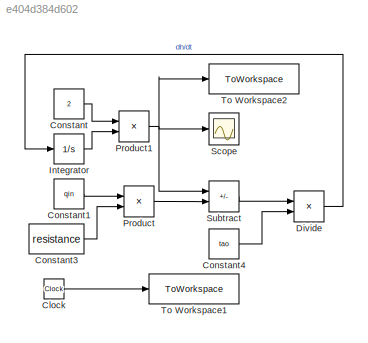
MODEL slx_e404d384d602
KIND model
CONFIG AbsTol = auto
CONFIG EnableMultiTasking = off
CONFIG FixedStep = auto
CONFIG MaxStep = auto
CONFIG MinStep = auto
CONFIG RelTol = 1e-3
CONFIG SampleTimeConstraint = Unconstrained
CONFIG Solver = VariableStepAuto
CONFIG SolverName = VariableStepAuto
CONFIG StartTime = 0.0
CONFIG StopTime = time
BLOCK [Clock] Clock
  Decimation = time
BLOCK [Constant] Constant
  Value = 2
BLOCK [Constant] Constant1
  Value = qin
BLOCK [Constant] Constant3
  Value = resistance
BLOCK [Constant] Constant4
  Value = tao
BLOCK [Product] Divide
  Inputs = */
  Ports = [2, 1]
BLOCK [Integrator] Integrator
  Ports = [1, 1]
BLOCK [Product] Product
  Ports = [2, 1]
BLOCK [Product] Product1
  Ports = [2, 1]
BLOCK [Scope] Scope
  Floating = off
  NumInputPorts = 1
  Ports = [1]
  ScopeSpecificationString = Simulink.scopes.TimeScopeBlockCfg('CurrentConfiguration', extmgr.ConfigurationSet(extmgr.Configuration('Core','General UI',true),extmgr.Configuration('Core','Source UI',true),extmgr.Configuration('Sources','WiredSimulink',true),extmgr.Configuration('Visuals','Time Domain',true,'SerializedDisplays',{struct('MinYLimReal','-0.2875','MaxYLimReal','2.5875','YLabelReal','','MinYLimMag','0.00000','MaxYLi...<+1322ch>
BLOCK [Sum] Subtract
  IconShape = rectangular
  Inputs = -+
  Ports = [2, 1]
BLOCK [ToWorkspace] To Workspace1
  FixptAsFi = on
  MaxDataPoints = inf
  Ports = [1]
  SampleTime = -1
  VariableName = time
BLOCK [ToWorkspace] To Workspace2
  FixptAsFi = on
  MaxDataPoints = inf
  Ports = [1]
  SampleTime = -1
  VariableName = data
LINE Clock:1 -> To Workspace1:1
LINE Constant1:1 -> Product:1
LINE Constant3:1 -> Product:2
LINE Constant4:1 -> Divide:2
LINE Constant:1 -> Product1:1
LINE Divide:1 -> Integrator:1
LINE Integrator:1 -> Product1:2
NET Product1:1 -> Scope:1, Subtract:1, To Workspace2:1
LINE Product:1 -> Subtract:2
LINE Subtract:1 -> Divide:1
note: NET lines group one-source signal fan-out (src -> all destinations, sorted); 1:1 wires keep LINE
